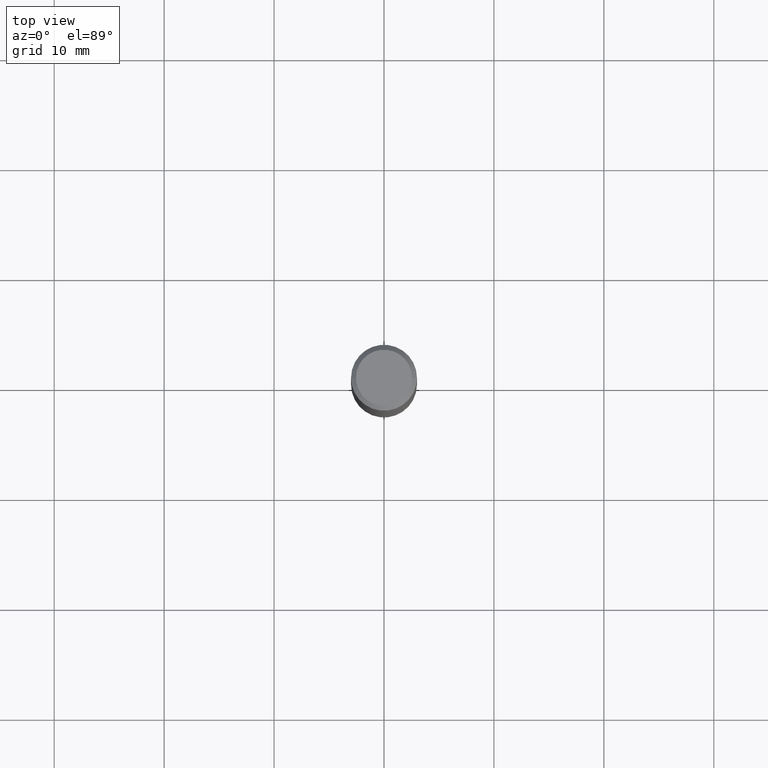
[diagram: clean part render]
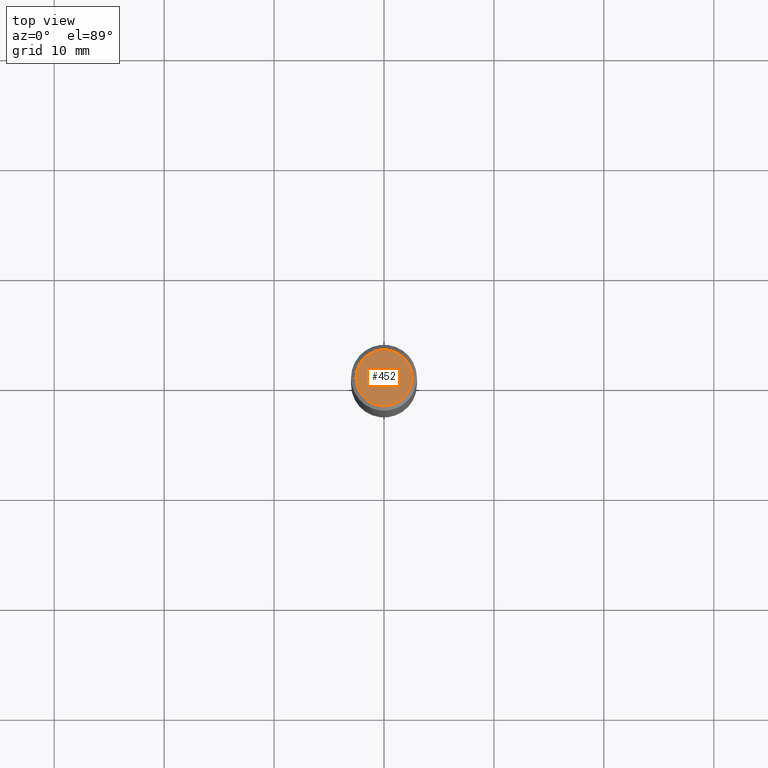
[diagram: same view with one face highlighted and labeled with its STEP entity id]
A machine part, top view. The second image highlights one B-rep face of the part: STEP entity #452.
In plain terms, the highlighted planar face has unit normal (0, -0, -1).
Its self-contained STEP definition (entity closure, byte-faithful):
#102 = DIRECTION ( 'NONE',  ( -2.445468806185136597E-29, 3.491481338843145583E-15, 1.000000000000000000 ) ) ;
#145 = VERTEX_POINT ( 'NONE', #465 ) ;
#189 = VERTEX_POINT ( 'NONE', #444 ) ;
#212 = EDGE_CURVE ( 'NONE', #189, #145, #291, .T. ) ;
#221 = AXIS2_PLACEMENT_3D ( 'NONE', #224, #491, #421 ) ;
#223 = PLANE ( 'NONE',  #413 ) ;
#224 = CARTESIAN_POINT ( 'NONE',  ( 5.011033706304132718E-46, -7.154428071060963220E-32, -2.049109640503330010E-17 ) ) ;
#289 = ORIENTED_EDGE ( 'NONE', *, *, #212, .T. ) ;
#291 = CIRCLE ( 'NONE', #300, 0.1003850000000000159 ) ;
#300 = AXIS2_PLACEMENT_3D ( 'NONE', #447, #102, #302 ) ;
#302 = DIRECTION ( 'NONE',  ( 1.000000000000000000, -6.982962677686266711E-15, 4.875668750515085695E-29 ) ) ;
#316 = EDGE_LOOP ( 'NONE', ( #289, #464 ) ) ;
#337 = CIRCLE ( 'NONE', #221, 0.1003850000000000159 ) ;
#376 = CARTESIAN_POINT ( 'NONE',  ( 2.505516853152066359E-46, -3.577214035530481610E-32, -1.024554820251665005E-17 ) ) ;
#413 = AXIS2_PLACEMENT_3D ( 'NONE', #376, #456, #462 ) ;
#415 = FACE_OUTER_BOUND ( 'NONE', #316, .T. ) ;
#421 = DIRECTION ( 'NONE',  ( 1.000000000000000000, -6.982962677686266711E-15, 4.875668750515085695E-29 ) ) ;
#444 = CARTESIAN_POINT ( 'NONE',  ( -0.1003850000000000159, 7.319105043583384717E-16, -2.049109640503831060E-17 ) ) ;
#446 = EDGE_CURVE ( 'NONE', #145, #189, #337, .T. ) ;
#447 = CARTESIAN_POINT ( 'NONE',  ( 5.011033706304132718E-46, -7.154428071060963220E-32, -2.049109640503330010E-17 ) ) ;
#452 = ADVANCED_FACE ( 'NONE', ( #415 ), #223, .F. ) ;
#456 = DIRECTION ( 'NONE',  ( 2.438088387897960049E-29, -3.491481338843145188E-15, -1.000000000000000000 ) ) ;
#462 = DIRECTION ( 'NONE',  ( -1.000000000000000000, 6.982962677686265922E-15, -4.876176775795935793E-29 ) ) ;
#464 = ORIENTED_EDGE ( 'NONE', *, *, #446, .T. ) ;
#465 = CARTESIAN_POINT ( 'NONE',  ( 0.1003850000000000159, -7.803837484803599345E-16, -2.049109640502812012E-17 ) ) ;
#491 = DIRECTION ( 'NONE',  ( -2.445468806185136597E-29, 3.491481338843145583E-15, 1.000000000000000000 ) ) ;